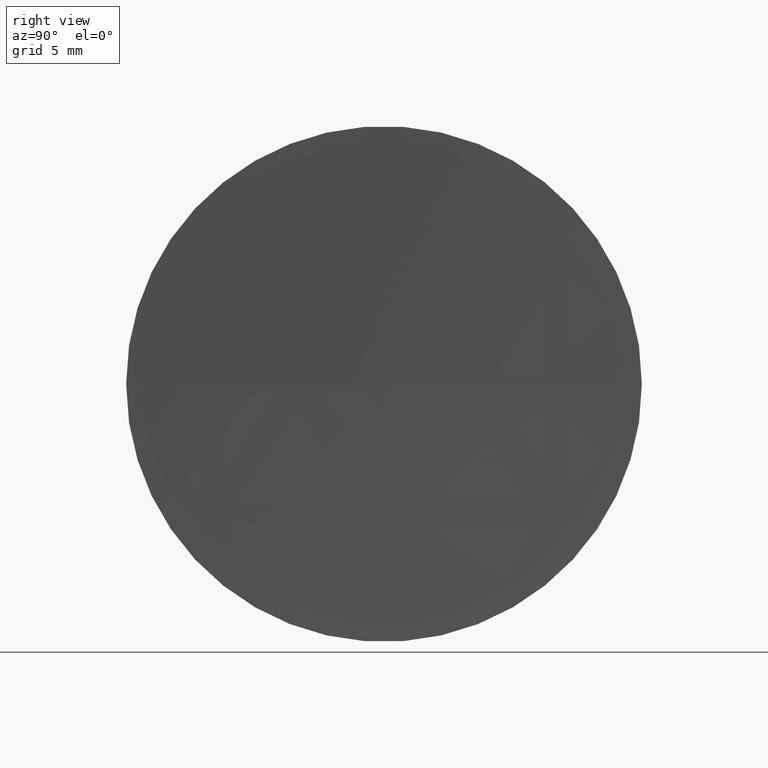
[diagram: clean part render]
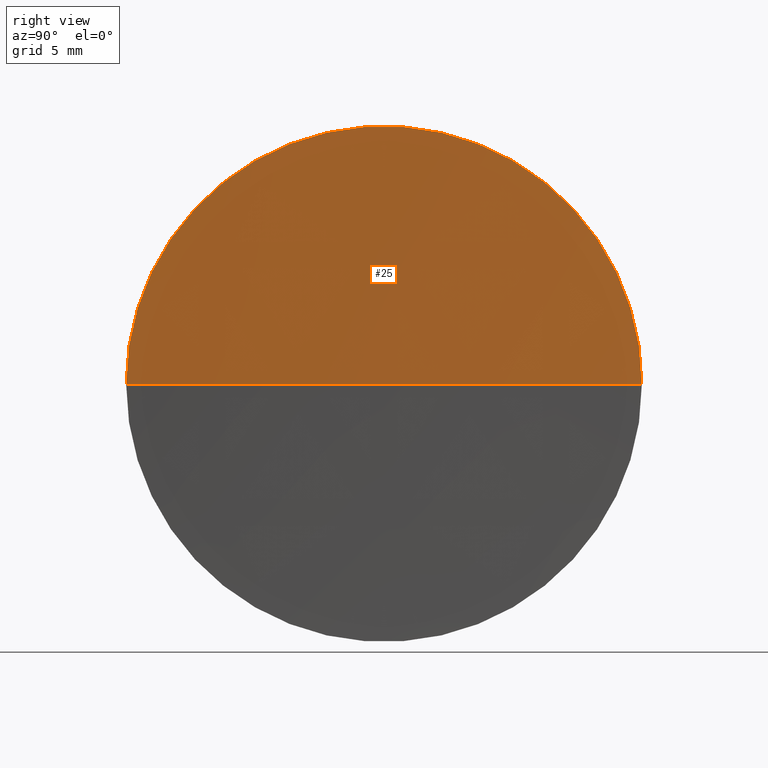
[diagram: same view with one face highlighted and labeled with its STEP entity id]
A machine part, right view. The second image highlights one B-rep face of the part: STEP entity #25.
In plain terms, the highlighted spherical surface has radius 304.4 mm.
Its self-contained STEP definition (entity closure, byte-faithful):
#4 = VERTEX_POINT ( 'NONE', #21 ) ;
#10 = CARTESIAN_POINT ( 'NONE',  ( 125.8689544180531200, 65.21684047094032600, 0.0000000000000000000 ) ) ;
#21 = CARTESIAN_POINT ( 'NONE',  ( 125.8689544180530900, 77.71684047093980000, 0.0000000000000000000 ) ) ;
#22 = CARTESIAN_POINT ( 'NONE',  ( 125.6121936984946900, 65.21684047093667400, 0.0000000000000000000 ) ) ;
#23 = DIRECTION ( 'NONE',  ( 0.0000000000000000000, 1.000000000000000000, 1.224646799147353200E-016 ) ) ;
#25 = ADVANCED_FACE ( 'NONE', ( #137 ), #92, .F. ) ;
#28 = AXIS2_PLACEMENT_3D ( 'NONE', #151, #170, #85 ) ;
#32 = CIRCLE ( 'NONE', #78, 304.3999999999999800 ) ;
#37 = AXIS2_PLACEMENT_3D ( 'NONE', #154, #134, #74 ) ;
#38 = ORIENTED_EDGE ( 'NONE', *, *, #43, .F. ) ;
#43 = EDGE_CURVE ( 'NONE', #49, #4, #51, .T. ) ;
#49 = VERTEX_POINT ( 'NONE', #114 ) ;
#51 = CIRCLE ( 'NONE', #192, 12.49999999999996300 ) ;
#62 = DIRECTION ( 'NONE',  ( -1.000000000000000000, -6.937607244762875000E-016, -0.0000000000000000000 ) ) ;
#74 = DIRECTION ( 'NONE',  ( 1.000000000000000000, 0.0000000000000000000, 0.0000000000000000000 ) ) ;
#77 = VERTEX_POINT ( 'NONE', #22 ) ;
#78 = AXIS2_PLACEMENT_3D ( 'NONE', #187, #106, #23 ) ;
#81 = EDGE_CURVE ( 'NONE', #4, #77, #153, .T. ) ;
#85 = DIRECTION ( 'NONE',  ( -7.294500818824944100E-016, 1.000000000000000000, 0.0000000000000000000 ) ) ;
#89 = EDGE_CURVE ( 'NONE', #49, #77, #32, .T. ) ;
#92 = SPHERICAL_SURFACE ( 'NONE', #28, 304.3999999999999800 ) ;
#106 = DIRECTION ( 'NONE',  ( -8.496118506040342700E-032, 1.224646799147353200E-016, -1.000000000000000000 ) ) ;
#114 = CARTESIAN_POINT ( 'NONE',  ( 125.8689544180530900, 52.71684047093719300, -1.530808498934126800E-015 ) ) ;
#115 = EDGE_LOOP ( 'NONE', ( #38, #118, #191 ) ) ;
#118 = ORIENTED_EDGE ( 'NONE', *, *, #89, .T. ) ;
#134 = DIRECTION ( 'NONE',  ( 0.0000000000000000000, -0.0000000000000000000, 1.000000000000000000 ) ) ;
#136 = DIRECTION ( 'NONE',  ( 0.0000000000000000000, -1.000000000000000000, 0.0000000000000000000 ) ) ;
#137 = FACE_OUTER_BOUND ( 'NONE', #115, .T. ) ;
#151 = CARTESIAN_POINT ( 'NONE',  ( 430.0121936984946800, 65.21684047093687300, 0.0000000000000000000 ) ) ;
#153 = CIRCLE ( 'NONE', #37, 304.3999999999999200 ) ;
#154 = CARTESIAN_POINT ( 'NONE',  ( 430.0121936984946800, 65.21684047093687300, 0.0000000000000000000 ) ) ;
#170 = DIRECTION ( 'NONE',  ( 0.0000000000000000000, 0.0000000000000000000, -1.000000000000000000 ) ) ;
#187 = CARTESIAN_POINT ( 'NONE',  ( 430.0121936984946800, 65.21684047093687300, 0.0000000000000000000 ) ) ;
#191 = ORIENTED_EDGE ( 'NONE', *, *, #81, .F. ) ;
#192 = AXIS2_PLACEMENT_3D ( 'NONE', #10, #62, #136 ) ;